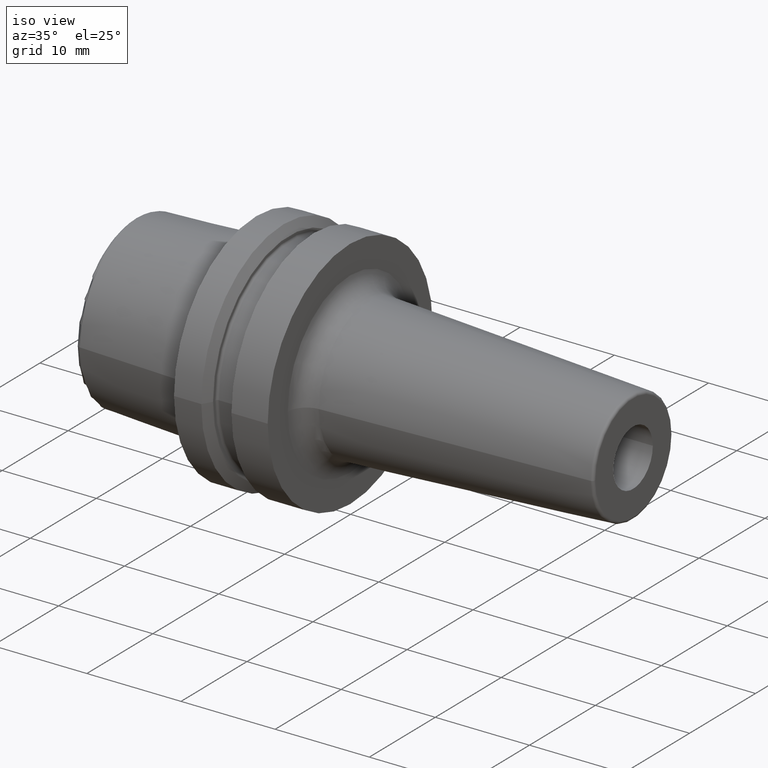
[diagram: clean part render]
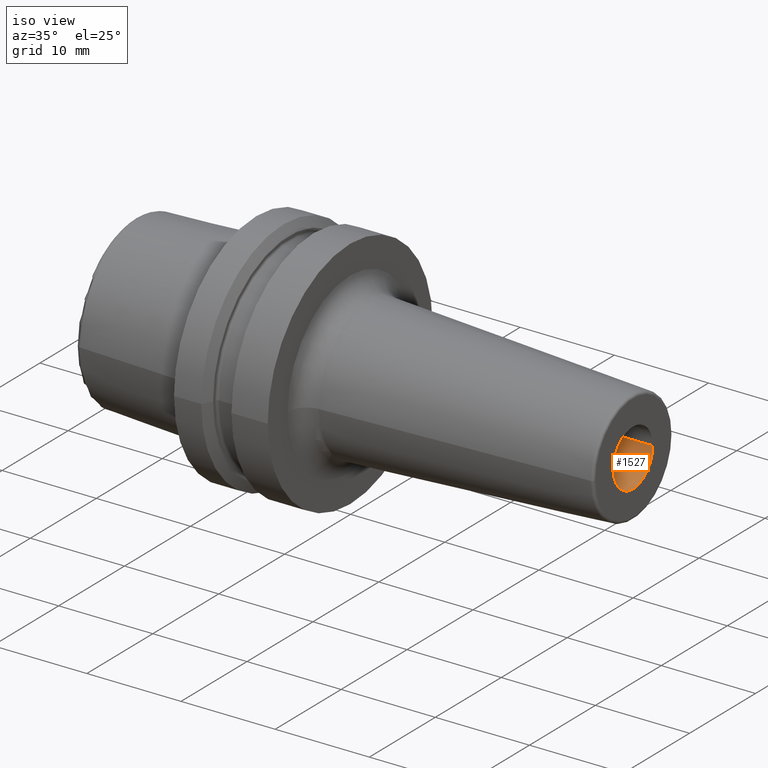
[diagram: same view with one face highlighted and labeled with its STEP entity id]
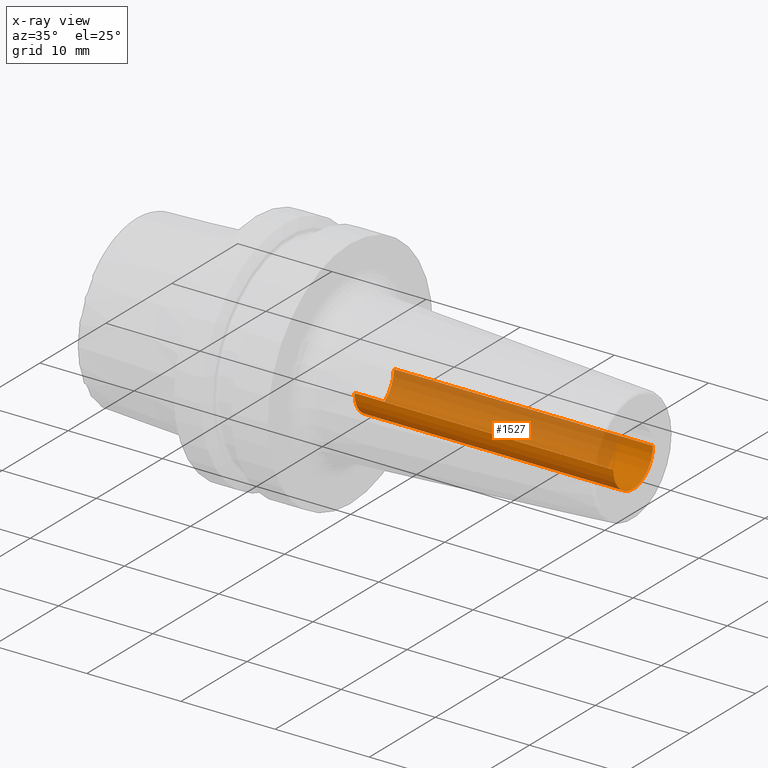
[diagram: x-ray of the same camera — body ghosted, the highlighted face saturated]
A machine part, iso view. The second image highlights one B-rep face of the part: STEP entity #1527.
The next image is the same camera in x-ray: the body ghosted, the highlighted face saturated — about 56% of this face is hidden behind the body in this view.
In plain terms, the highlighted cylindrical surface (edge-blend (fillet) strip) has radius 3 mm, axis along (1, 0, 0).
Its self-contained STEP definition (entity closure, byte-faithful):
#537=CARTESIAN_POINT('',(4.E1,0.E0,0.E0));
#538=DIRECTION('',(1.E0,0.E0,0.E0));
#539=DIRECTION('',(0.E0,-1.E0,0.E0));
#540=AXIS2_PLACEMENT_3D('',#537,#538,#539);
#542=DIRECTION('',(-1.E0,0.E0,0.E0));
#543=VECTOR('',#542,2.75E1);
#544=CARTESIAN_POINT('',(4.E1,-3.E0,0.E0));
#545=LINE('',#544,#543);
#546=DIRECTION('',(-1.E0,0.E0,0.E0));
#547=VECTOR('',#546,2.75E1);
#548=CARTESIAN_POINT('',(4.E1,3.E0,0.E0));
#549=LINE('',#548,#547);
#550=CARTESIAN_POINT('',(1.25E1,0.E0,0.E0));
#551=DIRECTION('',(-1.E0,0.E0,0.E0));
#552=DIRECTION('',(0.E0,1.E0,0.E0));
#553=AXIS2_PLACEMENT_3D('',#550,#551,#552);
#684=CARTESIAN_POINT('',(1.25E1,3.E0,0.E0));
#685=CARTESIAN_POINT('',(1.25E1,-3.E0,0.E0));
#686=VERTEX_POINT('',#684);
#687=VERTEX_POINT('',#685);
#688=CARTESIAN_POINT('',(4.E1,3.E0,0.E0));
#689=CARTESIAN_POINT('',(4.E1,-3.E0,0.E0));
#690=VERTEX_POINT('',#688);
#691=VERTEX_POINT('',#689);
#1515=CARTESIAN_POINT('',(1.1125E1,0.E0,0.E0));
#1516=DIRECTION('',(1.E0,0.E0,0.E0));
#1517=DIRECTION('',(0.E0,-1.E0,0.E0));
#1518=AXIS2_PLACEMENT_3D('',#1515,#1516,#1517);
#1519=CYLINDRICAL_SURFACE('',#1518,3.E0);
#1520=ORIENTED_EDGE('',*,*,#1495,.F.);
#1521=ORIENTED_EDGE('',*,*,#1510,.T.);
#1523=ORIENTED_EDGE('',*,*,#1522,.F.);
#1524=ORIENTED_EDGE('',*,*,#1506,.F.);
#1525=EDGE_LOOP('',(#1520,#1521,#1523,#1524));
#1526=FACE_OUTER_BOUND('',#1525,.F.);
#1527=ADVANCED_FACE('',(#1526),#1519,.F.);
#541=CIRCLE('',#540,3.E0);
#554=CIRCLE('',#553,3.E0);
#1495=EDGE_CURVE('',#691,#690,#541,.T.);
#1506=EDGE_CURVE('',#690,#686,#549,.T.);
#1510=EDGE_CURVE('',#691,#687,#545,.T.);
#1522=EDGE_CURVE('',#686,#687,#554,.T.);